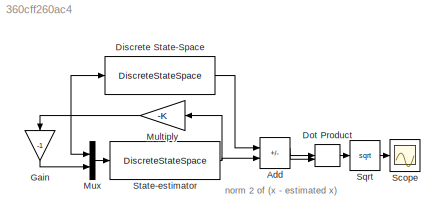
MODEL slx_360cff260ac4
KIND model
CONFIG AbsTol = auto
CONFIG EnableMultiTasking = off
CONFIG FixedStep = auto
CONFIG MaxStep = auto
CONFIG MinStep = auto
CONFIG RelTol = 1e-3
CONFIG SampleTimeConstraint = Unconstrained
CONFIG SolverName = VariableStepAuto
CONFIG StartTime = 0.0
CONFIG StopTime = 30
BLOCK [Sum] Add
  IconShape = rectangular
  Inputs = +-
BLOCK [DiscreteStateSpace] Discrete State-Space
  A = Gd_ss.A
  B = Gd_ss.B
  C = [1 0;0 1]
  D = [0 ; 0]
  InitialCondition = X0
  SampleTime = T
BLOCK [DotProduct] Dot Product
  OutDataTypeStr = Inherit: Inherit via internal rule
BLOCK [Gain] Gain
  Gain = -1
  NameLocation = left
BLOCK [Gain] Multiply
  Gain = -K
  Multiplication = Matrix(K*u)
  NameLocation = top
BLOCK [Mux] Mux
  DisplayOption = bar
  Inputs = 2
BLOCK [Scope] Scope
  Floating = off
  NumInputPorts = 1
  ScopeSpecificationString = Simulink.scopes.TimeScopeBlockCfg('CurrentConfiguration', extmgr.ConfigurationSet(extmgr.Configuration('Core','General UI',true),extmgr.Configuration('Core','Source UI',true),extmgr.Configuration('Sources','WiredSimulink',true),extmgr.Configuration('Visuals','Time Domain',true,'SerializedDisplays',{struct('MinYLimReal','-0.17655','MaxYLimReal','1.59097','YLabelReal','','MinYLimMag','0.00000','MaxY...<+1443ch>
BLOCK [Sqrt] Sqrt
BLOCK [DiscreteStateSpace] State-estimator
  A = A_est
  B = B_est
  C = eye(2)
  D = zeros(2,2)
  SampleTime = T
ANNOTATION (root): norm 2 of (x - estimated x)
NET Add:1 -> Dot Product:1, Dot Product:2
LINE Discrete State-Space:1 -> Add:1
LINE Dot Product:1 -> Sqrt:1
LINE Gain:1 -> Mux:2
NET Multiply:1 -> Discrete State-Space:1, Gain:1, Mux:1
LINE Mux:1 -> State-estimator:1
LINE Sqrt:1 -> Scope:1
NET State-estimator:1 -> Add:2, Multiply:1
note: NET lines group one-source signal fan-out (src -> all destinations, sorted); 1:1 wires keep LINE
